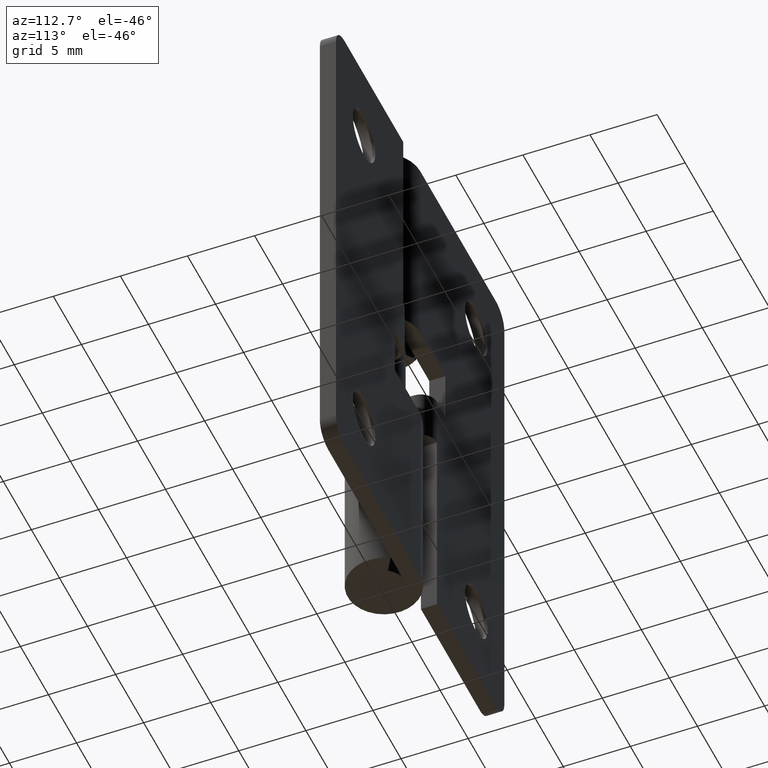
[diagram: clean part render]
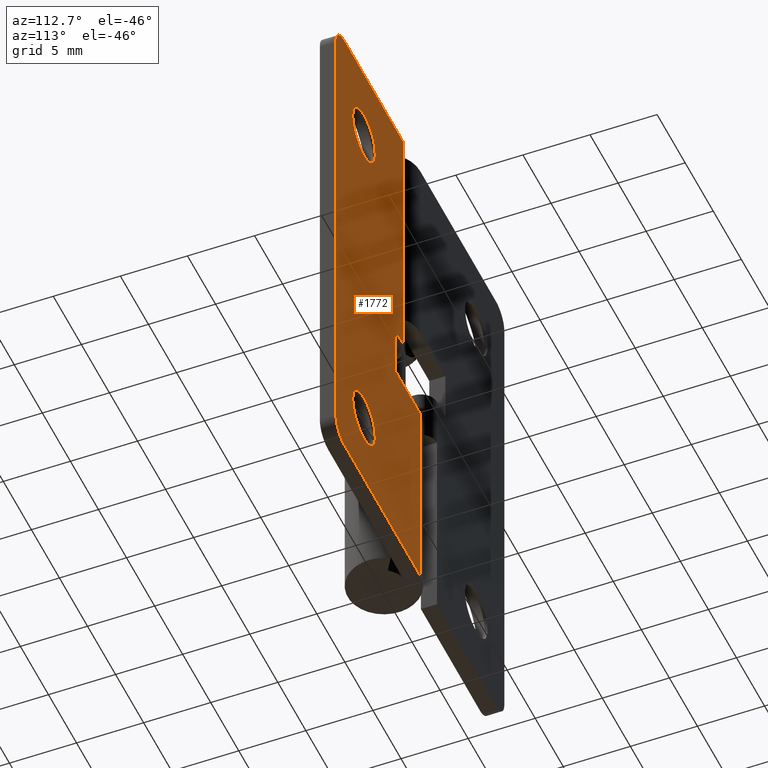
[diagram: same view with one face highlighted and labeled with its STEP entity id]
A machine part, auxiliary view. The second image highlights one B-rep face of the part: STEP entity #1772.
In plain terms, the highlighted face is a freeform B-spline surface patch.
Its self-contained STEP definition (entity closure, byte-faithful):
#472=CARTESIAN_POINT('',(11.986938377345840,2.699997000000000,33.771783587580430));
#473=VERTEX_POINT('',#472);
#479=CARTESIAN_POINT('',(10.0,2.699997000000000,31.999984999999999));
#480=VERTEX_POINT('',#479);
#481=CARTESIAN_POINT('',(11.986938377345840,2.699997000000000,33.771783587580430));
#482=CARTESIAN_POINT('',(11.783445861569737,2.699997000000001,31.999984999999999));
#483=CARTESIAN_POINT('',(10.0,2.699997000000000,31.999984999999999));
#491=(BOUNDED_CURVE()B_SPLINE_CURVE(2,(#481,#482,#483),.UNSPECIFIED.,.F.,.U.)B_SPLINE_CURVE_WITH_KNOTS((3,3),(0.269767770005125,0.500000000000000),.UNSPECIFIED.)CURVE()GEOMETRIC_REPRESENTATION_ITEM()RATIONAL_B_SPLINE_CURVE((0.957343708590814,0.730266164328808,1.0))REPRESENTATION_ITEM(''));
#492=EDGE_CURVE('',#473,#480,#491,.T.);
#494=CARTESIAN_POINT('',(8.003730403179752,2.699997000000000,33.877887920546293));
#495=VERTEX_POINT('',#494);
#496=CARTESIAN_POINT('',(10.0,2.699997000000000,31.999984999999999));
#497=CARTESIAN_POINT('',(8.118587866913771,2.699997000000000,31.999985000000009));
#498=CARTESIAN_POINT('',(8.003730403179752,2.699997000000000,33.877887920546293));
#506=(BOUNDED_CURVE()B_SPLINE_CURVE(2,(#496,#497,#498),.UNSPECIFIED.,.F.,.U.)B_SPLINE_CURVE_WITH_KNOTS((3,3),(0.500000000000000,0.739332962175587),.UNSPECIFIED.)CURVE()GEOMETRIC_REPRESENTATION_ITEM()RATIONAL_B_SPLINE_CURVE((1.0,0.719603993360936,0.976072041530934))REPRESENTATION_ITEM(''));
#507=EDGE_CURVE('',#480,#495,#506,.T.);
#602=CARTESIAN_POINT('',(10.0,2.699997000000000,35.999985000000002));
#603=VERTEX_POINT('',#602);
#604=CARTESIAN_POINT('',(8.003730403179752,2.699997000000000,33.877887920546293));
#605=CARTESIAN_POINT('',(8.0,2.699997000000001,33.938879473017749));
#606=CARTESIAN_POINT('',(8.0,2.699997000000000,33.999985000000002));
#607=CARTESIAN_POINT('',(8.0,2.699997000000000,35.999985000000009));
#608=CARTESIAN_POINT('',(10.0,2.699997000000000,35.999985000000002));
#616=(BOUNDED_CURVE()B_SPLINE_CURVE(2,(#604,#605,#606,#607,#608),.UNSPECIFIED.,.F.,.U.)B_SPLINE_CURVE_WITH_KNOTS((3,2,3),(0.739332962175587,0.750000000000000,1.0),.UNSPECIFIED.)CURVE()GEOMETRIC_REPRESENTATION_ITEM()RATIONAL_B_SPLINE_CURVE((0.976072041530934,0.987502787825611,1.0,0.707106781186548,1.0))REPRESENTATION_ITEM(''));
#617=EDGE_CURVE('',#495,#603,#616,.T.);
#619=CARTESIAN_POINT('',(10.0,2.699997000000000,35.999985000000002));
#620=CARTESIAN_POINT('',(12.0,2.699997000000000,35.999985000000009));
#621=CARTESIAN_POINT('',(12.0,2.699997000000000,33.999985000000002));
#622=CARTESIAN_POINT('',(12.000000000000002,2.699997000000001,33.885510446191844));
#623=CARTESIAN_POINT('',(11.986938377345840,2.699997000000000,33.771783587580430));
#631=(BOUNDED_CURVE()B_SPLINE_CURVE(2,(#619,#620,#621,#622,#623),.UNSPECIFIED.,.F.,.U.)B_SPLINE_CURVE_WITH_KNOTS((3,2,3),(0.0,0.250000000000000,0.269767770005125),.UNSPECIFIED.)CURVE()GEOMETRIC_REPRESENTATION_ITEM()RATIONAL_B_SPLINE_CURVE((1.0,0.707106781186548,1.0,0.976840616857740,0.957343708590814))REPRESENTATION_ITEM(''));
#632=EDGE_CURVE('',#603,#473,#631,.T.);
#800=CARTESIAN_POINT('',(11.986938377345840,2.699997000000000,5.771791587580220));
#801=VERTEX_POINT('',#800);
#807=CARTESIAN_POINT('',(10.0,2.699997000000000,3.999992999999790));
#808=VERTEX_POINT('',#807);
#809=CARTESIAN_POINT('',(11.986938377345833,2.699997000000000,5.771791587580220));
#810=CARTESIAN_POINT('',(11.783445861569746,2.699996999999999,3.999992999999790));
#811=CARTESIAN_POINT('',(10.0,2.699997000000000,3.999992999999790));
#819=(BOUNDED_CURVE()B_SPLINE_CURVE(2,(#809,#810,#811),.UNSPECIFIED.,.F.,.U.)B_SPLINE_CURVE_WITH_KNOTS((3,3),(0.269767770005124,0.500000000000000),.UNSPECIFIED.)CURVE()GEOMETRIC_REPRESENTATION_ITEM()RATIONAL_B_SPLINE_CURVE((0.957343708590815,0.730266164328807,1.0))REPRESENTATION_ITEM(''));
#820=EDGE_CURVE('',#801,#808,#819,.T.);
#822=CARTESIAN_POINT('',(8.003730403179752,2.699997000000000,5.877895920546076));
#823=VERTEX_POINT('',#822);
#824=CARTESIAN_POINT('',(10.0,2.699997000000000,3.999992999999790));
#825=CARTESIAN_POINT('',(8.118587866913771,2.699997000000000,3.999992999999790));
#826=CARTESIAN_POINT('',(8.003730403179752,2.699997000000001,5.877895920546076));
#834=(BOUNDED_CURVE()B_SPLINE_CURVE(2,(#824,#825,#826),.UNSPECIFIED.,.F.,.U.)B_SPLINE_CURVE_WITH_KNOTS((3,3),(0.500000000000000,0.739332962175587),.UNSPECIFIED.)CURVE()GEOMETRIC_REPRESENTATION_ITEM()RATIONAL_B_SPLINE_CURVE((1.0,0.719603993360936,0.976072041530934))REPRESENTATION_ITEM(''));
#835=EDGE_CURVE('',#808,#823,#834,.T.);
#930=CARTESIAN_POINT('',(10.0,2.699997000000000,7.999992999999790));
#931=VERTEX_POINT('',#930);
#932=CARTESIAN_POINT('',(8.003730403179752,2.699997000000000,5.877895920546076));
#933=CARTESIAN_POINT('',(8.0,2.699997000000000,5.938887473017534));
#934=CARTESIAN_POINT('',(8.0,2.699997000000000,5.999992999999790));
#935=CARTESIAN_POINT('',(8.0,2.699997000000000,7.999992999999791));
#936=CARTESIAN_POINT('',(10.0,2.699997000000000,7.999992999999790));
#944=(BOUNDED_CURVE()B_SPLINE_CURVE(2,(#932,#933,#934,#935,#936),.UNSPECIFIED.,.F.,.U.)B_SPLINE_CURVE_WITH_KNOTS((3,2,3),(0.739332962175586,0.750000000000000,1.0),.UNSPECIFIED.)CURVE()GEOMETRIC_REPRESENTATION_ITEM()RATIONAL_B_SPLINE_CURVE((0.976072041530933,0.987502787825611,1.0,0.707106781186548,1.0))REPRESENTATION_ITEM(''));
#945=EDGE_CURVE('',#823,#931,#944,.T.);
#947=CARTESIAN_POINT('',(10.0,2.699997000000000,7.999992999999790));
#948=CARTESIAN_POINT('',(12.0,2.699997000000000,7.999992999999791));
#949=CARTESIAN_POINT('',(12.0,2.699997000000000,5.999992999999790));
#950=CARTESIAN_POINT('',(12.000000000000002,2.699997000000001,5.885518446191634));
#951=CARTESIAN_POINT('',(11.986938377345835,2.699997000000001,5.771791587580220));
#959=(BOUNDED_CURVE()B_SPLINE_CURVE(2,(#947,#948,#949,#950,#951),.UNSPECIFIED.,.F.,.U.)B_SPLINE_CURVE_WITH_KNOTS((3,2,3),(0.0,0.250000000000000,0.269767770005124),.UNSPECIFIED.)CURVE()GEOMETRIC_REPRESENTATION_ITEM()RATIONAL_B_SPLINE_CURVE((1.0,0.707106781186548,1.0,0.976840616857741,0.957343708590815))REPRESENTATION_ITEM(''));
#960=EDGE_CURVE('',#931,#801,#959,.T.);
#1109=CARTESIAN_POINT('',(3.000003000000000,2.699997000000000,20.0));
#1110=VERTEX_POINT('',#1109);
#1131=CARTESIAN_POINT('',(3.0,2.699997000000000,23.999962000000000));
#1132=VERTEX_POINT('',#1131);
#1146=CARTESIAN_POINT('',(3.000003000000000,2.699997000000000,20.0));
#1147=CARTESIAN_POINT('',(3.0,2.699997000000000,23.999962000000000));
#1148=QUASI_UNIFORM_CURVE('',1,(#1146,#1147),.UNSPECIFIED.,.F.,.U.);
#1149=EDGE_CURVE('',#1110,#1132,#1148,.T.);
#1269=CARTESIAN_POINT('',(4.499992000000001,2.699997000000000,20.0));
#1270=VERTEX_POINT('',#1269);
#1276=CARTESIAN_POINT('',(4.499992000000001,2.699997000000000,16.0));
#1277=VERTEX_POINT('',#1276);
#1278=CARTESIAN_POINT('',(4.499992000000001,2.699997000000000,20.0));
#1279=CARTESIAN_POINT('',(4.499992000000001,2.699997000000000,16.0));
#1280=QUASI_UNIFORM_CURVE('',1,(#1278,#1279),.UNSPECIFIED.,.F.,.U.);
#1281=EDGE_CURVE('',#1270,#1277,#1280,.T.);
#1298=CARTESIAN_POINT('',(3.000003000000000,2.699997000000000,20.0));
#1299=CARTESIAN_POINT('',(4.499992000000001,2.699997000000000,20.0));
#1300=QUASI_UNIFORM_CURVE('',1,(#1298,#1299),.UNSPECIFIED.,.F.,.U.);
#1301=EDGE_CURVE('',#1110,#1270,#1300,.T.);
#1319=CARTESIAN_POINT('',(3.0,2.699997000000000,39.999961999999996));
#1320=VERTEX_POINT('',#1319);
#1321=CARTESIAN_POINT('',(3.0,2.699997000000000,39.999961999999996));
#1322=CARTESIAN_POINT('',(3.0,2.699997000000000,23.999962000000000));
#1323=QUASI_UNIFORM_CURVE('',1,(#1321,#1322),.UNSPECIFIED.,.F.,.U.);
#1324=EDGE_CURVE('',#1320,#1132,#1323,.T.);
#1404=CARTESIAN_POINT('',(0.004024921167902,2.699997000000000,16.0));
#1405=VERTEX_POINT('',#1404);
#1406=CARTESIAN_POINT('',(4.499992000000001,2.699997000000000,16.0));
#1407=CARTESIAN_POINT('',(0.004024921167902,2.699997000000000,16.0));
#1408=QUASI_UNIFORM_CURVE('',1,(#1406,#1407),.UNSPECIFIED.,.F.,.U.);
#1409=EDGE_CURVE('',#1277,#1405,#1408,.T.);
#1452=CARTESIAN_POINT('',(14.999993000000000,2.699997000000110,38.499953999999953));
#1453=VERTEX_POINT('',#1452);
#1459=CARTESIAN_POINT('',(13.499993000000000,2.699997000000110,39.999954000000002));
#1460=VERTEX_POINT('',#1459);
#1461=CARTESIAN_POINT('',(13.499993000000000,2.699997000000110,39.999954000000002));
#1462=CARTESIAN_POINT('',(14.121313343559658,2.699997000000109,39.999954000000002));
#1463=CARTESIAN_POINT('',(14.560653171779840,2.699997000000110,39.560614171779797));
#1464=CARTESIAN_POINT('',(14.999993000000002,2.699997000000109,39.121274343559634));
#1465=CARTESIAN_POINT('',(14.999993000000000,2.699997000000110,38.499954000000002));
#1473=(BOUNDED_CURVE()B_SPLINE_CURVE(2,(#1461,#1462,#1463,#1464,#1465),.UNSPECIFIED.,.F.,.U.)B_SPLINE_CURVE_WITH_KNOTS((3,2,3),(0.0,0.500000000000000,1.0),.UNSPECIFIED.)CURVE()GEOMETRIC_REPRESENTATION_ITEM()RATIONAL_B_SPLINE_CURVE((1.0,0.923879532511284,1.0,0.923879532511284,1.0))REPRESENTATION_ITEM(''));
#1474=EDGE_CURVE('',#1460,#1453,#1473,.T.);
#1515=CARTESIAN_POINT('',(13.499993000000000,2.699997000000110,-0.000038000000001));
#1516=VERTEX_POINT('',#1515);
#1522=CARTESIAN_POINT('',(14.999993000000000,2.699997000000110,1.499962000000020));
#1523=VERTEX_POINT('',#1522);
#1524=CARTESIAN_POINT('',(14.999993000000000,2.699997000000110,1.499962000000020));
#1525=CARTESIAN_POINT('',(14.999992999999991,2.699997000000111,-0.000037999999980));
#1526=CARTESIAN_POINT('',(13.499993000000000,2.699997000000110,-0.000037999999980));
#1534=(BOUNDED_CURVE()B_SPLINE_CURVE(2,(#1524,#1525,#1526),.UNSPECIFIED.,.F.,.U.)CURVE()GEOMETRIC_REPRESENTATION_ITEM()QUASI_UNIFORM_CURVE()RATIONAL_B_SPLINE_CURVE((1.0,0.707106781186548,1.0))REPRESENTATION_ITEM(''));
#1535=EDGE_CURVE('',#1523,#1516,#1534,.T.);
#1557=CARTESIAN_POINT('',(13.499993000000000,2.699997000000110,39.999954000000002));
#1558=CARTESIAN_POINT('',(3.0,2.699997000000000,39.999961999999996));
#1559=QUASI_UNIFORM_CURVE('',1,(#1557,#1558),.UNSPECIFIED.,.F.,.U.);
#1560=EDGE_CURVE('',#1460,#1320,#1559,.T.);
#1570=CARTESIAN_POINT('',(0.004024921167902,2.699997000000110,-0.000038000000036));
#1571=VERTEX_POINT('',#1570);
#1572=CARTESIAN_POINT('',(13.499993000000000,2.699997000000110,-0.000038000000001));
#1573=CARTESIAN_POINT('',(0.004024921167902,2.699997000000110,-0.000038000000036));
#1574=QUASI_UNIFORM_CURVE('',1,(#1572,#1573),.UNSPECIFIED.,.F.,.U.);
#1575=EDGE_CURVE('',#1516,#1571,#1574,.T.);
#1711=CARTESIAN_POINT('',(0.004024921167902,2.699997000000110,-0.000038000000036));
#1712=CARTESIAN_POINT('',(0.004024921167902,2.699997000000000,16.0));
#1713=QUASI_UNIFORM_CURVE('',1,(#1711,#1712),.UNSPECIFIED.,.F.,.U.);
#1714=EDGE_CURVE('',#1571,#1405,#1713,.T.);
#1733=CARTESIAN_POINT('',(14.999993000000000,2.699997000000110,1.499962000000020));
#1734=CARTESIAN_POINT('',(14.999993000000000,2.699997000000110,38.499953999999953));
#1735=QUASI_UNIFORM_CURVE('',1,(#1733,#1734),.UNSPECIFIED.,.F.,.U.);
#1736=EDGE_CURVE('',#1523,#1453,#1735,.T.);
#1742=CARTESIAN_POINT('',(-0.745023655304664,2.699997000000110,-1.998037922472276));
#1743=CARTESIAN_POINT('',(-0.745023655304664,2.699997000000110,41.997962995355842));
#1744=CARTESIAN_POINT('',(15.749041978695780,2.699997000000110,-1.998037922472276));
#1745=CARTESIAN_POINT('',(15.749041978695780,2.699997000000110,41.997962995355842));
#1746=B_SPLINE_SURFACE_WITH_KNOTS('',1,1,((#1742,#1744),(#1743,#1745)),.UNSPECIFIED.,.F.,.F.,.U.,(2,2),(2,2),(0.0,43.996000917828120),(0.0,16.494065634000439),.UNSPECIFIED.);
#1747=ORIENTED_EDGE('',*,*,#1301,.F.);
#1748=ORIENTED_EDGE('',*,*,#1149,.T.);
#1749=ORIENTED_EDGE('',*,*,#1324,.F.);
#1750=ORIENTED_EDGE('',*,*,#1560,.F.);
#1751=ORIENTED_EDGE('',*,*,#1474,.T.);
#1752=ORIENTED_EDGE('',*,*,#1736,.F.);
#1753=ORIENTED_EDGE('',*,*,#1535,.T.);
#1754=ORIENTED_EDGE('',*,*,#1575,.T.);
#1755=ORIENTED_EDGE('',*,*,#1714,.T.);
#1756=ORIENTED_EDGE('',*,*,#1409,.F.);
#1757=ORIENTED_EDGE('',*,*,#1281,.F.);
#1758=EDGE_LOOP('',(#1747,#1748,#1749,#1750,#1751,#1752,#1753,#1754,#1755,#1756,#1757));
#1759=FACE_OUTER_BOUND('',#1758,.T.);
#1760=ORIENTED_EDGE('',*,*,#835,.F.);
#1761=ORIENTED_EDGE('',*,*,#820,.F.);
#1762=ORIENTED_EDGE('',*,*,#960,.F.);
#1763=ORIENTED_EDGE('',*,*,#945,.F.);
#1764=EDGE_LOOP('',(#1760,#1761,#1762,#1763));
#1765=FACE_BOUND('',#1764,.T.);
#1766=ORIENTED_EDGE('',*,*,#507,.F.);
#1767=ORIENTED_EDGE('',*,*,#492,.F.);
#1768=ORIENTED_EDGE('',*,*,#632,.F.);
#1769=ORIENTED_EDGE('',*,*,#617,.F.);
#1770=EDGE_LOOP('',(#1766,#1767,#1768,#1769));
#1771=FACE_BOUND('',#1770,.T.);
#1772=ADVANCED_FACE('',(#1759,#1765,#1771),#1746,.T.);